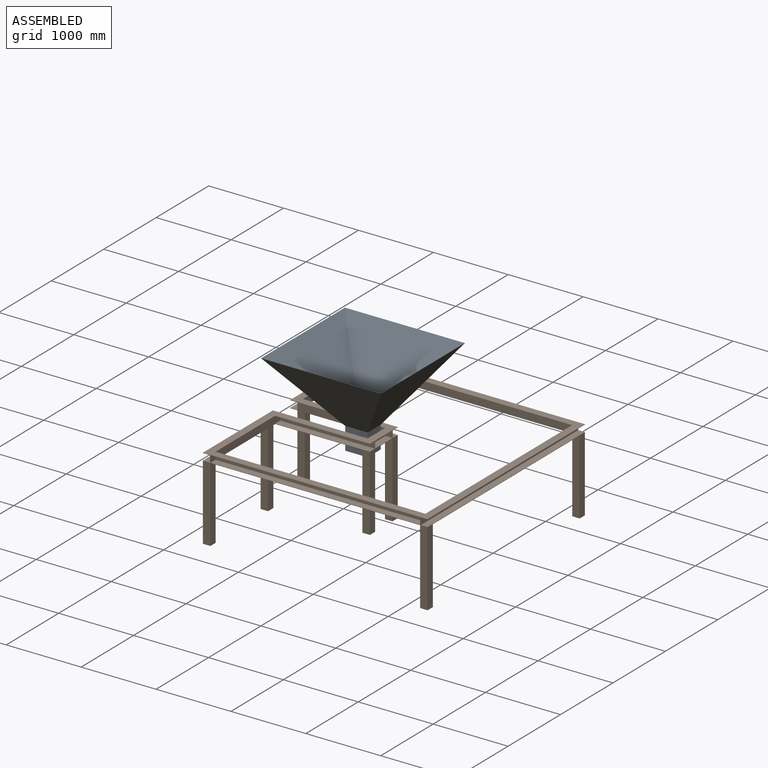
[diagram: assembled view]
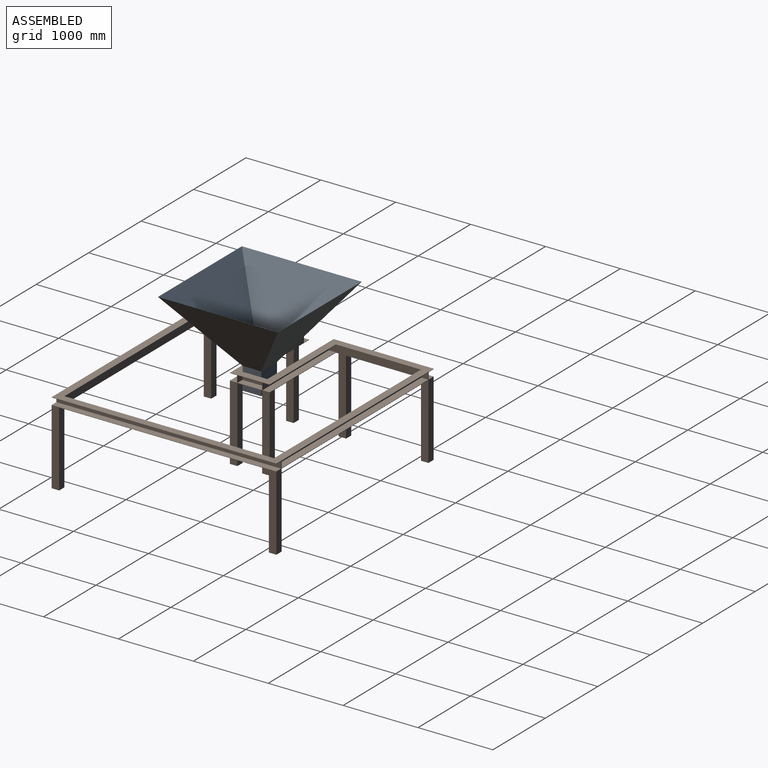
[diagram: assembled view, second angle]
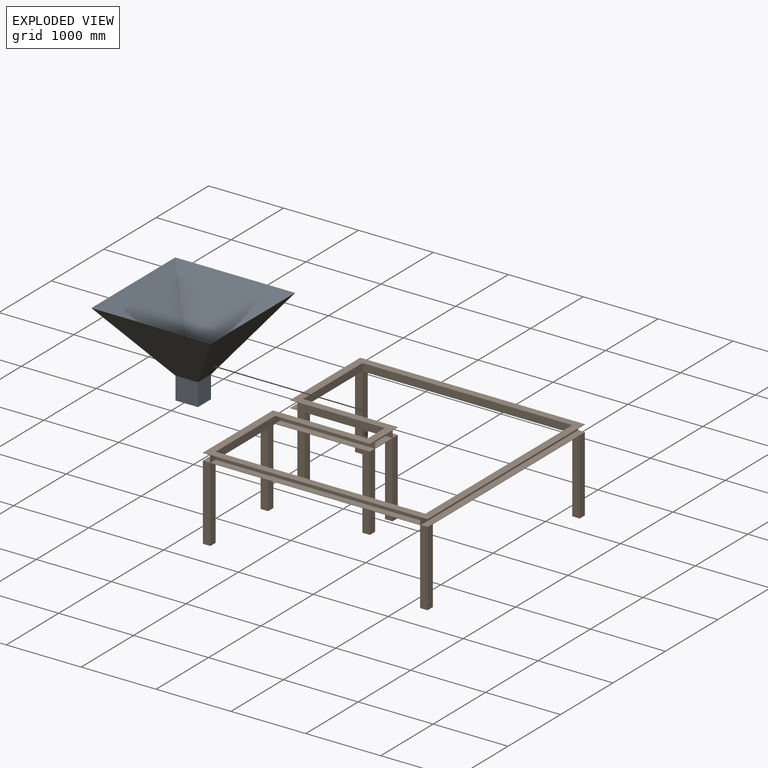
[diagram: exploded view]
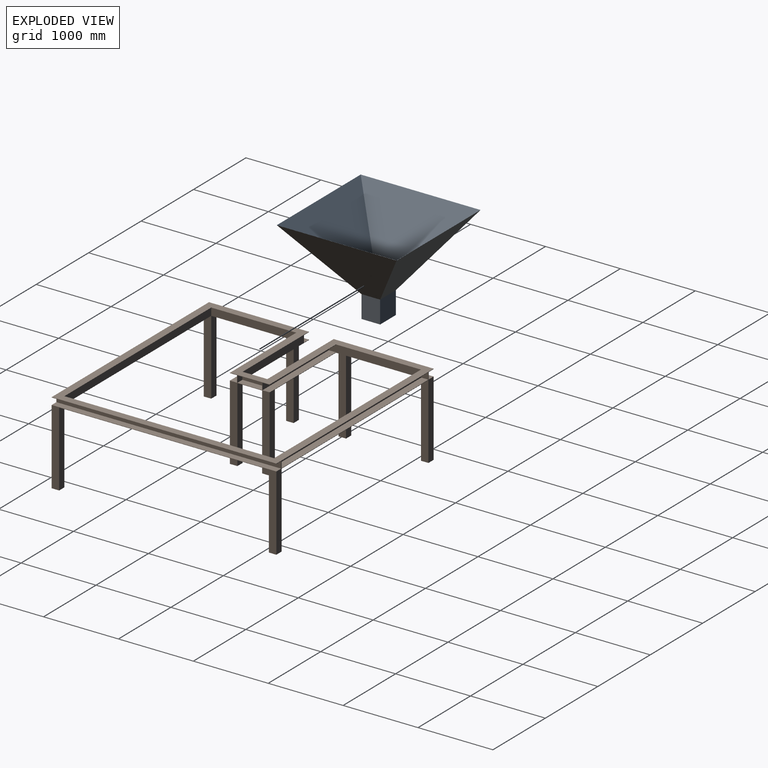
[diagram: exploded view, second angle]
ASSEMBLY  parts=2 mates=2
PART A: 18 faces, bbox 1600x1600x1200 mm
  f0: plane 1600x1600mm, normal (0,0,-1), area 3972.6mm2, adj f1,f2,f3,f4,f5,f6,f7,f8
  f1: plane 1600x900mm, normal (-0.8,0,0.6), area 1069035.1mm2, adj f0,f2,f4,f14
  f2: plane 1600x900mm, normal (0,0.81,0.59), area 1026361.6mm2, adj f0,f1,f3,f13
  f3: plane 1600x900mm, normal (0.8,0,0.6), area 1069035.1mm2, adj f0,f2,f4,f16
  f4: plane 1600x900mm, normal (0,-0.81,0.59), area 1026361.6mm2, adj f0,f1,f3,f15
  f5: plane 1598.77x899.5mm, normal (0.8,0,-0.6), area 1067460mm2, adj f0,f6,f8,f9
  f6: plane 1598.75x899.5mm, normal (0,-0.81,-0.59), area 1024820.4mm2, adj f0,f5,f7,f10
  f7: plane 1598.77x899.5mm, normal (-0.8,0,-0.6), area 1067460mm2, adj f0,f6,f8,f11
  f8: plane 1598.75x899.5mm, normal (0,0.81,-0.59), area 1024820.4mm2, adj f0,f5,f7,f12
  f9: plane 300.5x299.49mm, normal (1,0,0), area 89996.4mm2, adj f5,f10,f12,f17
  f10: plane 300.5x248.5mm, normal (0,-1,0), area 74674.3mm2, adj f6,f9,f11,f17
  f11: plane 300.5x299.49mm, normal (-1,0,0), area 89996.4mm2, adj f7,f10,f12,f17
  f12: plane 300.5x248.5mm, normal (0,1,0), area 74674.3mm2, adj f8,f9,f11,f17
  f13: plane 300x249mm, normal (0,1,0), area 74700mm2, adj f2,f14,f16,f17
  f14: plane 300x300mm, normal (-1,0,0), area 90000mm2, adj f1,f13,f15,f17
  f15: plane 300x249mm, normal (0,-1,0), area 74700mm2, adj f4,f14,f16,f17
  f16: plane 300x300mm, normal (1,0,0), area 90000mm2, adj f3,f13,f15,f17
  f17: plane 300x249mm, normal (0,0,1), area 277mm2, adj f9,f10,f11,f12,f13,f14,f15,f16
PART B: 84 faces, bbox 3000x3000x1100 mm
  f0: plane 1265x135mm, normal (0,0,-1), area 130000mm2, adj f3,f5,f7,f59,f62,f83
  f1: plane 330x100mm, normal (0,0,-1), area 33000mm2, adj f2,f65,f80,f82
  f2: plane 1100x530mm, normal (1,0,0), area 206200mm2, adj f1,f3,f4,f26,f64,f66,f67,f68
  f3: plane 1265x1005mm, normal (0,1,0), area 106325mm2, adj f0,f2,f5,f67,f81,f83
  f4: plane 1265x5mm, normal (0,-1,0), area 6325mm2, adj f2,f20,f26,f70
  f5: plane 1230x1100mm, normal (1,0,0), area 222050mm2, adj f0,f3,f11,f21,f26,f59,f60,f61
  f6: plane 1335x5mm, normal (-1,0,0), area 6675mm2, adj f10,f17,f26,f62
  f7: plane 1335x1005mm, normal (-1,0,0), area 206675mm2, adj f0,f8,f11,f17,f53,f55,f59,f60
  f8: plane 1335x95mm, normal (0,0,1), area 126825mm2, adj f7,f9,f17,f62
  f9: plane 1335x90mm, normal (-1,0,0), area 120150mm2, adj f8,f10,f17,f62
  f10: plane 1335x95mm, normal (0,0,-1), area 126825mm2, adj f6,f9,f17,f62
  f11: plane 1000x100mm, normal (0,0,-1), area 100000mm2, adj f5,f7,f53,f60
  f12: plane 1265x135mm, normal (0,0,-1), area 130000mm2, adj f20,f23,f56,f63,f66,f79
  f13: plane 2800x100mm, normal (0,0,-1), area 280000mm2, adj f17,f21,f50,f54
  f14: plane 2800x100mm, normal (0,0,-1), area 280000mm2, adj f22,f24,f48,f51
  f15: plane 2800x100mm, normal (0,0,-1), area 280000mm2, adj f16,f25,f44,f47
  f16: plane 3000x1100mm, normal (0,-1,0), area 231364.7mm2, adj f15,f18,f19,f23,f24,f26,f28,f29
  f17: plane 3000x1100mm, normal (0,1,0), area 231364.7mm2, adj f6,f7,f8,f9,f10,f13,f19,f24
  f18: plane 1335x5mm, normal (-1,0,0), area 6675mm2, adj f16,f26,f33,f63
  f19: plane 3000x5mm, normal (1,0,0), area 15000mm2, adj f16,f17,f26,f28
  f20: plane 1230x1100mm, normal (1,0,0), area 222050mm2, adj f4,f12,f25,f26,f27,f56,f57,f58
  f21: plane 2800x100mm, normal (0,-1,0), area 280000mm2, adj f5,f13,f22,f26
  f22: plane 2800x100mm, normal (-1,0,0), area 280000mm2, adj f14,f21,f25,f26
  f23: plane 1335x1005mm, normal (-1,0,0), area 206675mm2, adj f12,f16,f27,f31,f45,f46,f56,f57
  f24: plane 3000x1005mm, normal (1,0,0), area 215000mm2, adj f14,f16,f17,f30,f48,f49,f51,f52
  f25: plane 2800x100mm, normal (0,1,0), area 280000mm2, adj f15,f20,f22,f26
  f26: plane 3000x3000mm, normal (0,0,1), area 1413000mm2, adj f2,f4,f5,f6,f16,f17,f18,f19
  f27: plane 1000x100mm, normal (0,0,-1), area 100000mm2, adj f20,f23,f45,f57
  f28: plane 3000x89.84mm, normal (0,0,-1), area 269509.2mm2, adj f16,f17,f19,f29
  f29: plane 3000x90mm, normal (1,0,0), area 270000mm2, adj f16,f17,f28,f30
  f30: plane 3000x89.84mm, normal (0,0,1), area 269509.2mm2, adj f16,f17,f24,f29
  f31: plane 1335x95mm, normal (0,0,1), area 126825mm2, adj f16,f23,f32,f63
  f32: plane 1335x90mm, normal (-1,0,0), area 120150mm2, adj f16,f31,f33,f63
  f33: plane 1335x95mm, normal (0,0,-1), area 126825mm2, adj f16,f18,f32,f63
  f34: plane 95x90mm, normal (-1,0,0), area 8550mm2, adj f17,f35,f36,f37
  f35: plane 2800x95mm, normal (0,0,-1), area 266000mm2, adj f17,f34,f36,f38
  f36: plane 2800x90mm, normal (0,1,0), area 252000mm2, adj f34,f35,f37,f38
  f37: plane 2800x95mm, normal (0,0,1), area 266000mm2, adj f17,f34,f36,f38
  f38: plane 95x90mm, normal (1,0,0), area 8550mm2, adj f17,f35,f36,f37
  f39: plane 95x90mm, normal (-1,0,0), area 8550mm2, adj f16,f40,f42,f43
  f40: plane 2800x95mm, normal (0,0,-1), area 266000mm2, adj f16,f39,f41,f42
  f41: plane 95x90mm, normal (1,0,0), area 8550mm2, adj f16,f40,f42,f43
  f42: plane 2800x90mm, normal (0,-1,0), area 252000mm2, adj f39,f40,f41,f43
  f43: plane 2800x95mm, normal (0,0,1), area 266000mm2, adj f16,f39,f41,f42
  f44: plane 1000x100mm, normal (1,0,0), area 100000mm2, adj f15,f16,f45,f46
  f45: plane 1000x100mm, normal (0,1,0), area 100000mm2, adj f23,f27,f44,f46
  f46: plane 100x100mm, normal (0,0,-1), area 10000mm2, adj f16,f23,f44,f45
  f47: plane 1000x100mm, normal (-1,0,0), area 100000mm2, adj f15,f16,f48,f49
  f48: plane 1000x100mm, normal (0,1,0), area 100000mm2, adj f14,f24,f47,f49
  f49: plane 100x100mm, normal (0,0,-1), area 10000mm2, adj f16,f24,f47,f48
  f50: plane 1000x100mm, normal (-1,0,0), area 100000mm2, adj f13,f17,f51,f52
  f51: plane 1000x100mm, normal (0,-1,0), area 100000mm2, adj f14,f24,f50,f52
  f52: plane 100x100mm, normal (0,0,-1), area 10000mm2, adj f17,f24,f50,f51
  f53: plane 1000x100mm, normal (0,-1,0), area 100000mm2, adj f7,f11,f54,f55
  f54: plane 1000x100mm, normal (1,0,0), area 100000mm2, adj f13,f17,f53,f55
  f55: plane 100x100mm, normal (0,0,-1), area 10000mm2, adj f7,f17,f53,f54
  f56: plane 1000x100mm, normal (0,1,0), area 100000mm2, adj f12,f20,f23,f58
  f57: plane 1000x100mm, normal (0,-1,0), area 100000mm2, adj f20,f23,f27,f58
  f58: plane 100x100mm, normal (0,0,-1), area 10000mm2, adj f20,f23,f56,f57
  f59: plane 1000x100mm, normal (0,-1,0), area 100000mm2, adj f0,f5,f7,f61
  f60: plane 1000x100mm, normal (0,1,0), area 100000mm2, adj f5,f7,f11,f61
  f61: plane 100x100mm, normal (0,0,-1), area 10000mm2, adj f5,f7,f59,f60
  f62: plane 1265x100mm, normal (0,-1,0), area 117950mm2, adj f0,f6,f7,f8,f9,f10,f26,f65
  f63: plane 1265x100mm, normal (0,1,0), area 117950mm2, adj f12,f18,f23,f26,f31,f32,f33,f65
  f64: plane 1265x5mm, normal (0,1,0), area 6325mm2, adj f2,f5,f26,f68
  f65: plane 330x100mm, normal (-1,0,0), area 33000mm2, adj f1,f26,f62,f63
  f66: plane 1265x1005mm, normal (0,-1,0), area 106325mm2, adj f2,f12,f20,f72,f78,f79
  f67: plane 1265x95mm, normal (0,0,1), area 120175mm2, adj f2,f3,f5,f69
  f68: plane 1265x95mm, normal (0,0,-1), area 120175mm2, adj f2,f5,f64,f69
  f69: plane 1265x90mm, normal (0,1,0), area 113850mm2, adj f2,f5,f67,f68
  f70: plane 1265x95mm, normal (0,0,-1), area 120175mm2, adj f2,f4,f20,f71
  f71: plane 1265x90mm, normal (0,-1,0), area 113850mm2, adj f2,f20,f70,f72
  f72: plane 1265x95mm, normal (0,0,1), area 120175mm2, adj f2,f20,f66,f71
  f73: plane 95x90mm, normal (0,-1,0), area 8550mm2, adj f2,f74,f76,f77
  f74: plane 330x90mm, normal (1,0,0), area 29700mm2, adj f73,f75,f76,f77
  f75: plane 95x90mm, normal (0,1,0), area 8550mm2, adj f2,f74,f76,f77
  f76: plane 330x95mm, normal (0,0,-1), area 31350mm2, adj f2,f73,f74,f75
  f77: plane 330x95mm, normal (0,0,1), area 31350mm2, adj f2,f73,f74,f75
  f78: plane 100x100mm, normal (0,0,-1), area 10000mm2, adj f2,f66,f79,f80
  f79: plane 1000x100mm, normal (-1,0,0), area 100000mm2, adj f12,f66,f78,f80
  f80: plane 1000x100mm, normal (0,1,0), area 100000mm2, adj f1,f2,f78,f79
  f81: plane 100x100mm, normal (0,0,-1), area 10000mm2, adj f2,f3,f82,f83
  f82: plane 1000x100mm, normal (0,-1,0), area 100000mm2, adj f1,f2,f81,f83
  f83: plane 1000x100mm, normal (-1,0,0), area 100000mm2, adj f0,f3,f81,f82
PLACE A rot(axis=(0.71,-0.71,0),180deg) t=(-536.07,-287.94,1918.26)mm
PLACE B t=(-151.07,-247.44,896.82)mm fixed
MATE planar B.f63 <-> A.f16  axis (0,1,0) through (-976.16,-412.44,896.82)mm
MATE planar A.f15 <-> B.f65  axis (1,0,0) through (-386.07,-287.94,868.26)mm
